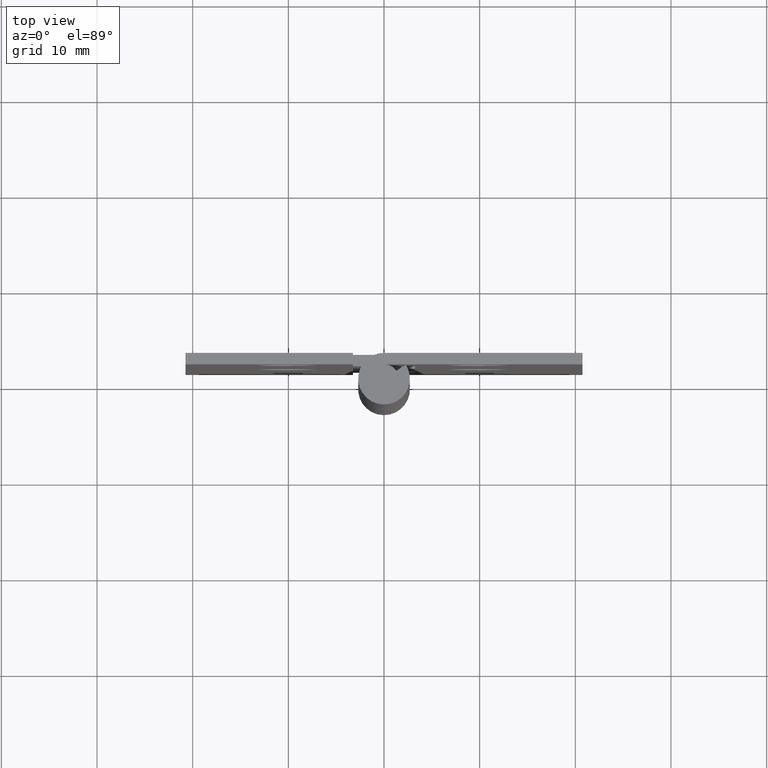
[diagram: clean part render]
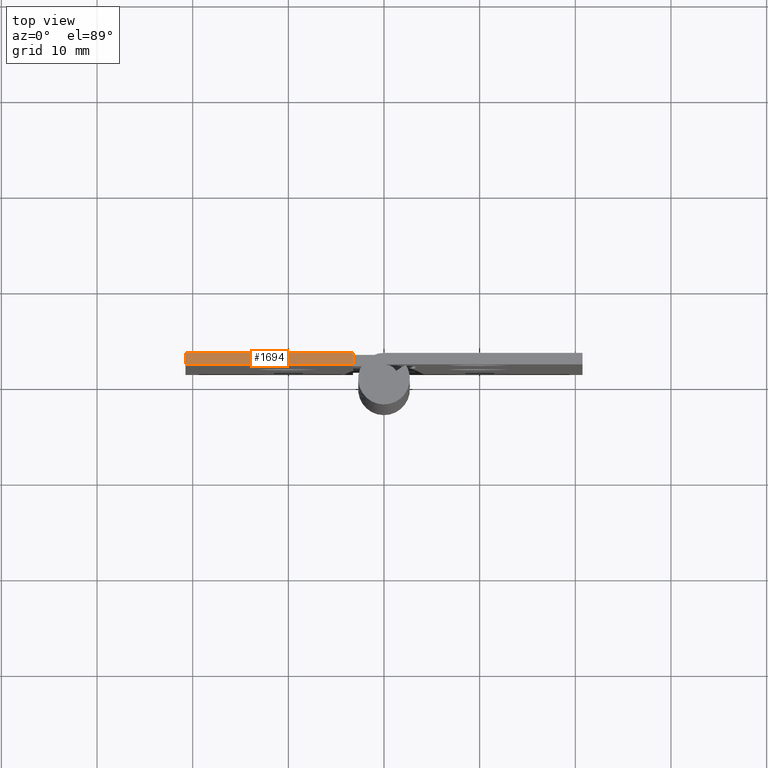
[diagram: same view with one face highlighted and labeled with its STEP entity id]
A machine part, top view. The second image highlights one B-rep face of the part: STEP entity #1694.
In plain terms, the highlighted face is a freeform B-spline surface patch.
Its self-contained STEP definition (entity closure, byte-faithful):
#1363=CARTESIAN_POINT('',(-3.249999999999915,2.700001000000000,64.000006999999897));
#1364=VERTEX_POINT('',#1363);
#1370=CARTESIAN_POINT('',(-3.249999999999915,1.499999999999946,64.000006999999897));
#1371=VERTEX_POINT('',#1370);
#1372=CARTESIAN_POINT('',(-3.249999999999915,2.700001000000000,64.000006999999897));
#1373=CARTESIAN_POINT('',(-3.249999999999915,1.499999999999946,64.000006999999897));
#1374=QUASI_UNIFORM_CURVE('',1,(#1372,#1373),.UNSPECIFIED.,.F.,.U.);
#1375=EDGE_CURVE('',#1364,#1371,#1374,.T.);
#1667=CARTESIAN_POINT('',(-21.624124966081610,1.440059952375778,64.000006999999897));
#1668=CARTESIAN_POINT('',(-2.375874564531728,1.440059952375778,64.000006999999897));
#1669=CARTESIAN_POINT('',(-21.624124966081610,2.759941079810704,64.000006999999897));
#1670=CARTESIAN_POINT('',(-2.375874564531728,2.759941079810704,64.000006999999897));
#1671=B_SPLINE_SURFACE_WITH_KNOTS('',1,1,((#1667,#1669),(#1668,#1670)),.UNSPECIFIED.,.F.,.F.,.U.,(2,2),(2,2),(0.0,19.248250401549878),(0.041708334948495,0.958291687403247),.UNSPECIFIED.);
#1672=CARTESIAN_POINT('',(-20.750000000000000,1.500000000000000,64.000006999999897));
#1673=VERTEX_POINT('',#1672);
#1674=CARTESIAN_POINT('',(-20.750000000000000,1.500000000000000,64.000006999999897));
#1675=CARTESIAN_POINT('',(-3.249999999999915,1.499999999999946,64.000006999999897));
#1676=QUASI_UNIFORM_CURVE('',1,(#1674,#1675),.UNSPECIFIED.,.F.,.U.);
#1677=EDGE_CURVE('',#1673,#1371,#1676,.T.);
#1678=ORIENTED_EDGE('',*,*,#1677,.T.);
#1679=ORIENTED_EDGE('',*,*,#1375,.F.);
#1680=CARTESIAN_POINT('',(-20.750000000000000,2.700001000000000,64.000006999999897));
#1681=VERTEX_POINT('',#1680);
#1682=CARTESIAN_POINT('',(-3.249999999999915,2.700001000000000,64.000006999999897));
#1683=CARTESIAN_POINT('',(-20.750000000000000,2.700001000000000,64.000006999999897));
#1684=QUASI_UNIFORM_CURVE('',1,(#1682,#1683),.UNSPECIFIED.,.F.,.U.);
#1685=EDGE_CURVE('',#1364,#1681,#1684,.T.);
#1686=ORIENTED_EDGE('',*,*,#1685,.T.);
#1687=CARTESIAN_POINT('',(-20.750000000000000,2.700001000000000,64.000006999999897));
#1688=CARTESIAN_POINT('',(-20.750000000000000,1.500000000000000,64.000006999999897));
#1689=QUASI_UNIFORM_CURVE('',1,(#1687,#1688),.UNSPECIFIED.,.F.,.U.);
#1690=EDGE_CURVE('',#1681,#1673,#1689,.T.);
#1691=ORIENTED_EDGE('',*,*,#1690,.T.);
#1692=EDGE_LOOP('',(#1678,#1679,#1686,#1691));
#1693=FACE_OUTER_BOUND('',#1692,.T.);
#1694=ADVANCED_FACE('',(#1693),#1671,.T.);